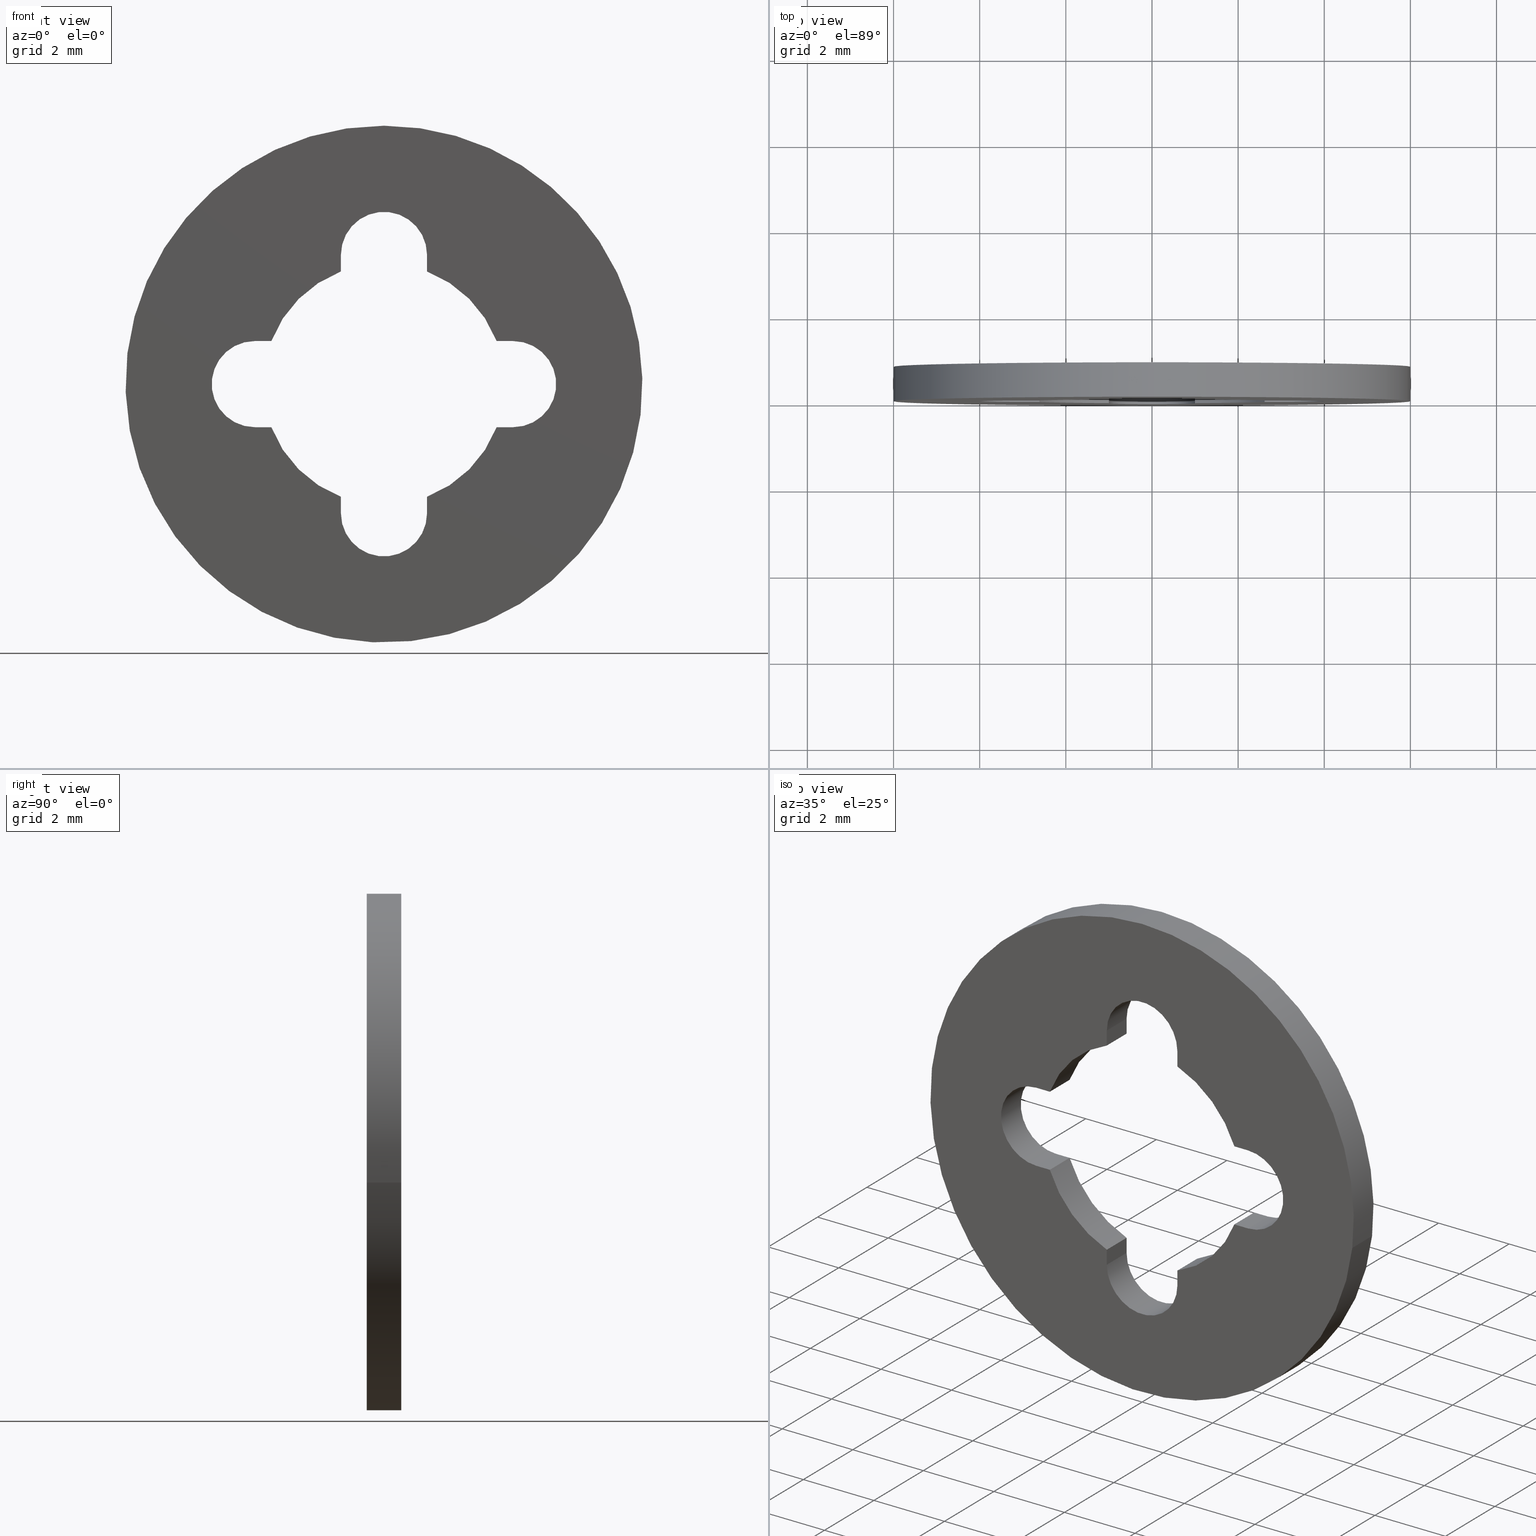
[diagram: canonical four-view strip — front | top / right | iso, engineering-drawing reading convention]
A machine part, canonical four-view strip (front | top / right | iso — engineering-drawing reading convention). The complete STEP part file that produces these views, byte-faithful:
ISO-10303-21;
HEADER;

FILE_DESCRIPTION( (''), '2;1');
FILE_NAME ('PC007.134708.TM_147V_4BK_6366.stp','2025-07-23T13:39:48',(''),(''),'spGate 19.8.4 (****-****-****-****)','','');

FILE_SCHEMA (('AUTOMOTIVE_DESIGN'));
ENDSEC;

DATA;
#10=(GEOMETRIC_REPRESENTATION_CONTEXT(3) GLOBAL_UNCERTAINTY_ASSIGNED_CONTEXT((#11)) GLOBAL_UNIT_ASSIGNED_CONTEXT((#12,#13,#14)) REPRESENTATION_CONTEXT('ID1','3D'));
#11=UNCERTAINTY_MEASURE_WITH_UNIT(LENGTH_MEASURE(0.01),#15,'DISTANCE_ACCURACY_VALUE','Maximum model space distance between geometric entities at asserted connectivities');
#12=(NAMED_UNIT(*) SI_UNIT($,.STERADIAN.) SOLID_ANGLE_UNIT());
#13=(CONVERSION_BASED_UNIT('DEGREE',#16) NAMED_UNIT(#17) PLANE_ANGLE_UNIT());
#14=(LENGTH_UNIT() NAMED_UNIT(*) SI_UNIT(.MILLI.,.METRE.));
#15=(LENGTH_UNIT() NAMED_UNIT(*) SI_UNIT(.MILLI.,.METRE.));
#16=PLANE_ANGLE_MEASURE_WITH_UNIT(PLANE_ANGLE_MEASURE(0.01745329252),#18);
#17=DIMENSIONAL_EXPONENTS(0.0,0.0,0.0,0.0,0.0,0.0,0.0);
#18=(NAMED_UNIT(*) PLANE_ANGLE_UNIT() SI_UNIT($,.RADIAN.));
#19=MANIFOLD_SOLID_BREP('TM_147V_4BK',#31);
#20=ADVANCED_BREP_SHAPE_REPRESENTATION('',(#19),#10);
#21=APPLICATION_CONTEXT('');
#22=APPLICATION_PROTOCOL_DEFINITION('International Standard','automotive_design',1999,#21);
#23=PRODUCT_DEFINITION_CONTEXT('',#21,'design');
#24=PRODUCT_CONTEXT('',#21,'mechanical');
#25=PRODUCT('','','',(#24));
#26=PRODUCT_DEFINITION_FORMATION_WITH_SPECIFIED_SOURCE('','',#25,.NOT_KNOWN.);
#27=PRODUCT_RELATED_PRODUCT_CATEGORY('tool','tool',(#25));
#28=PRODUCT_DEFINITION('','',#26,#23);
#29=PRODUCT_DEFINITION_SHAPE('','',#28);
#30=SHAPE_DEFINITION_REPRESENTATION(#29,#20);
#31=CLOSED_SHELL('',(#40,#41,#42,#43,#44,#45,#46,#47,#48,#49,#50,#51,#52,#53,#54,#55,#56,#57,#58,#59));
#32=COLOUR_RGB('',0.00000000000E+00,0.00000000000E+00,0.00000000000E+00);
#33=FILL_AREA_STYLE_COLOUR('',#32);
#34=FILL_AREA_STYLE('',(#33));
#35=SURFACE_STYLE_FILL_AREA(#34);
#36=SURFACE_SIDE_STYLE('',(#35));
#37=SURFACE_STYLE_USAGE(.BOTH.,#36);
#38=PRESENTATION_STYLE_ASSIGNMENT((#37));
#39=STYLED_ITEM('',(#38),#19);
#40=ADVANCED_FACE('',(#61,#62),#60,.T.);
#41=ADVANCED_FACE('',(#72,#73),#71,.F.);
#42=ADVANCED_FACE('',(#83),#82,.F.);
#43=ADVANCED_FACE('',(#93),#92,.F.);
#44=ADVANCED_FACE('',(#103),#102,.F.);
#45=ADVANCED_FACE('',(#113),#112,.F.);
#46=ADVANCED_FACE('',(#123),#122,.F.);
#47=ADVANCED_FACE('',(#133),#132,.F.);
#48=ADVANCED_FACE('',(#143),#142,.F.);
#49=ADVANCED_FACE('',(#153),#152,.F.);
#50=ADVANCED_FACE('',(#163),#162,.F.);
#51=ADVANCED_FACE('',(#173),#172,.F.);
#52=ADVANCED_FACE('',(#183),#182,.F.);
#53=ADVANCED_FACE('',(#193),#192,.F.);
#54=ADVANCED_FACE('',(#203),#202,.F.);
#55=ADVANCED_FACE('',(#213),#212,.F.);
#56=ADVANCED_FACE('',(#223),#222,.F.);
#57=ADVANCED_FACE('',(#233),#232,.F.);
#58=ADVANCED_FACE('',(#243),#242,.T.);
#59=ADVANCED_FACE('',(#253),#252,.T.);
#60=PLANE('',#265);
#61=FACE_OUTER_BOUND('',#266,.T.);
#62=FACE_BOUND('',#267,.T.);
#63=COLOUR_RGB('',1.00000000000E+00,1.00000000000E+00,1.00000000000E+00);
#64=FILL_AREA_STYLE_COLOUR('',#63);
#65=FILL_AREA_STYLE('',(#64));
#66=SURFACE_STYLE_FILL_AREA(#65);
#67=SURFACE_SIDE_STYLE('',(#66));
#68=SURFACE_STYLE_USAGE(.BOTH.,#67);
#69=PRESENTATION_STYLE_ASSIGNMENT((#68));
#70=STYLED_ITEM('',(#69),#40);
#71=PLANE('',#271);
#72=FACE_OUTER_BOUND('',#272,.T.);
#73=FACE_BOUND('',#273,.T.);
#74=COLOUR_RGB('',1.00000000000E+00,1.00000000000E+00,1.00000000000E+00);
#75=FILL_AREA_STYLE_COLOUR('',#74);
#76=FILL_AREA_STYLE('',(#75));
#77=SURFACE_STYLE_FILL_AREA(#76);
#78=SURFACE_SIDE_STYLE('',(#77));
#79=SURFACE_STYLE_USAGE(.BOTH.,#78);
#80=PRESENTATION_STYLE_ASSIGNMENT((#79));
#81=STYLED_ITEM('',(#80),#41);
#82=CYLINDRICAL_SURFACE('',#277,1.00000000000E+00);
#83=FACE_OUTER_BOUND('',#278,.T.);
#84=COLOUR_RGB('',1.00000000000E+00,1.00000000000E+00,1.00000000000E+00);
#85=FILL_AREA_STYLE_COLOUR('',#84);
#86=FILL_AREA_STYLE('',(#85));
#87=SURFACE_STYLE_FILL_AREA(#86);
#88=SURFACE_SIDE_STYLE('',(#87));
#89=SURFACE_STYLE_USAGE(.BOTH.,#88);
#90=PRESENTATION_STYLE_ASSIGNMENT((#89));
#91=STYLED_ITEM('',(#90),#42);
#92=PLANE('',#282);
#93=FACE_OUTER_BOUND('',#283,.T.);
#94=COLOUR_RGB('',1.00000000000E+00,1.00000000000E+00,1.00000000000E+00);
#95=FILL_AREA_STYLE_COLOUR('',#94);
#96=FILL_AREA_STYLE('',(#95));
#97=SURFACE_STYLE_FILL_AREA(#96);
#98=SURFACE_SIDE_STYLE('',(#97));
#99=SURFACE_STYLE_USAGE(.BOTH.,#98);
#100=PRESENTATION_STYLE_ASSIGNMENT((#99));
#101=STYLED_ITEM('',(#100),#43);
#102=CYLINDRICAL_SURFACE('',#287,2.80000000000E+00);
#103=FACE_OUTER_BOUND('',#288,.T.);
#104=COLOUR_RGB('',1.00000000000E+00,1.00000000000E+00,1.00000000000E+00);
#105=FILL_AREA_STYLE_COLOUR('',#104);
#106=FILL_AREA_STYLE('',(#105));
#107=SURFACE_STYLE_FILL_AREA(#106);
#108=SURFACE_SIDE_STYLE('',(#107));
#109=SURFACE_STYLE_USAGE(.BOTH.,#108);
#110=PRESENTATION_STYLE_ASSIGNMENT((#109));
#111=STYLED_ITEM('',(#110),#44);
#112=PLANE('',#292);
#113=FACE_OUTER_BOUND('',#293,.T.);
#114=COLOUR_RGB('',1.00000000000E+00,1.00000000000E+00,1.00000000000E+00);
#115=FILL_AREA_STYLE_COLOUR('',#114);
#116=FILL_AREA_STYLE('',(#115));
#117=SURFACE_STYLE_FILL_AREA(#116);
#118=SURFACE_SIDE_STYLE('',(#117));
#119=SURFACE_STYLE_USAGE(.BOTH.,#118);
#120=PRESENTATION_STYLE_ASSIGNMENT((#119));
#121=STYLED_ITEM('',(#120),#45);
#122=CYLINDRICAL_SURFACE('',#297,1.00000000000E+00);
#123=FACE_OUTER_BOUND('',#298,.T.);
#124=COLOUR_RGB('',1.00000000000E+00,1.00000000000E+00,1.00000000000E+00);
#125=FILL_AREA_STYLE_COLOUR('',#124);
#126=FILL_AREA_STYLE('',(#125));
#127=SURFACE_STYLE_FILL_AREA(#126);
#128=SURFACE_SIDE_STYLE('',(#127));
#129=SURFACE_STYLE_USAGE(.BOTH.,#128);
#130=PRESENTATION_STYLE_ASSIGNMENT((#129));
#131=STYLED_ITEM('',(#130),#46);
#132=PLANE('',#302);
#133=FACE_OUTER_BOUND('',#303,.T.);
#134=COLOUR_RGB('',1.00000000000E+00,1.00000000000E+00,1.00000000000E+00);
#135=FILL_AREA_STYLE_COLOUR('',#134);
#136=FILL_AREA_STYLE('',(#135));
#137=SURFACE_STYLE_FILL_AREA(#136);
#138=SURFACE_SIDE_STYLE('',(#137));
#139=SURFACE_STYLE_USAGE(.BOTH.,#138);
#140=PRESENTATION_STYLE_ASSIGNMENT((#139));
#141=STYLED_ITEM('',(#140),#47);
#142=CYLINDRICAL_SURFACE('',#307,2.80000000000E+00);
#143=FACE_OUTER_BOUND('',#308,.T.);
#144=COLOUR_RGB('',1.00000000000E+00,1.00000000000E+00,1.00000000000E+00);
#145=FILL_AREA_STYLE_COLOUR('',#144);
#146=FILL_AREA_STYLE('',(#145));
#147=SURFACE_STYLE_FILL_AREA(#146);
#148=SURFACE_SIDE_STYLE('',(#147));
#149=SURFACE_STYLE_USAGE(.BOTH.,#148);
#150=PRESENTATION_STYLE_ASSIGNMENT((#149));
#151=STYLED_ITEM('',(#150),#48);
#152=PLANE('',#312);
#153=FACE_OUTER_BOUND('',#313,.T.);
#154=COLOUR_RGB('',1.00000000000E+00,1.00000000000E+00,1.00000000000E+00);
#155=FILL_AREA_STYLE_COLOUR('',#154);
#156=FILL_AREA_STYLE('',(#155));
#157=SURFACE_STYLE_FILL_AREA(#156);
#158=SURFACE_SIDE_STYLE('',(#157));
#159=SURFACE_STYLE_USAGE(.BOTH.,#158);
#160=PRESENTATION_STYLE_ASSIGNMENT((#159));
#161=STYLED_ITEM('',(#160),#49);
#162=CYLINDRICAL_SURFACE('',#317,1.00000000000E+00);
#163=FACE_OUTER_BOUND('',#318,.T.);
#164=COLOUR_RGB('',1.00000000000E+00,1.00000000000E+00,1.00000000000E+00);
#165=FILL_AREA_STYLE_COLOUR('',#164);
#166=FILL_AREA_STYLE('',(#165));
#167=SURFACE_STYLE_FILL_AREA(#166);
#168=SURFACE_SIDE_STYLE('',(#167));
#169=SURFACE_STYLE_USAGE(.BOTH.,#168);
#170=PRESENTATION_STYLE_ASSIGNMENT((#169));
#171=STYLED_ITEM('',(#170),#50);
#172=PLANE('',#322);
#173=FACE_OUTER_BOUND('',#323,.T.);
#174=COLOUR_RGB('',1.00000000000E+00,1.00000000000E+00,1.00000000000E+00);
#175=FILL_AREA_STYLE_COLOUR('',#174);
#176=FILL_AREA_STYLE('',(#175));
#177=SURFACE_STYLE_FILL_AREA(#176);
#178=SURFACE_SIDE_STYLE('',(#177));
#179=SURFACE_STYLE_USAGE(.BOTH.,#178);
#180=PRESENTATION_STYLE_ASSIGNMENT((#179));
#181=STYLED_ITEM('',(#180),#51);
#182=CYLINDRICAL_SURFACE('',#327,2.80000000000E+00);
#183=FACE_OUTER_BOUND('',#328,.T.);
#184=COLOUR_RGB('',1.00000000000E+00,1.00000000000E+00,1.00000000000E+00);
#185=FILL_AREA_STYLE_COLOUR('',#184);
#186=FILL_AREA_STYLE('',(#185));
#187=SURFACE_STYLE_FILL_AREA(#186);
#188=SURFACE_SIDE_STYLE('',(#187));
#189=SURFACE_STYLE_USAGE(.BOTH.,#188);
#190=PRESENTATION_STYLE_ASSIGNMENT((#189));
#191=STYLED_ITEM('',(#190),#52);
#192=PLANE('',#332);
#193=FACE_OUTER_BOUND('',#333,.T.);
#194=COLOUR_RGB('',1.00000000000E+00,1.00000000000E+00,1.00000000000E+00);
#195=FILL_AREA_STYLE_COLOUR('',#194);
#196=FILL_AREA_STYLE('',(#195));
#197=SURFACE_STYLE_FILL_AREA(#196);
#198=SURFACE_SIDE_STYLE('',(#197));
#199=SURFACE_STYLE_USAGE(.BOTH.,#198);
#200=PRESENTATION_STYLE_ASSIGNMENT((#199));
#201=STYLED_ITEM('',(#200),#53);
#202=CYLINDRICAL_SURFACE('',#337,1.00000000000E+00);
#203=FACE_OUTER_BOUND('',#338,.T.);
#204=COLOUR_RGB('',1.00000000000E+00,1.00000000000E+00,1.00000000000E+00);
#205=FILL_AREA_STYLE_COLOUR('',#204);
#206=FILL_AREA_STYLE('',(#205));
#207=SURFACE_STYLE_FILL_AREA(#206);
#208=SURFACE_SIDE_STYLE('',(#207));
#209=SURFACE_STYLE_USAGE(.BOTH.,#208);
#210=PRESENTATION_STYLE_ASSIGNMENT((#209));
#211=STYLED_ITEM('',(#210),#54);
#212=PLANE('',#342);
#213=FACE_OUTER_BOUND('',#343,.T.);
#214=COLOUR_RGB('',1.00000000000E+00,1.00000000000E+00,1.00000000000E+00);
#215=FILL_AREA_STYLE_COLOUR('',#214);
#216=FILL_AREA_STYLE('',(#215));
#217=SURFACE_STYLE_FILL_AREA(#216);
#218=SURFACE_SIDE_STYLE('',(#217));
#219=SURFACE_STYLE_USAGE(.BOTH.,#218);
#220=PRESENTATION_STYLE_ASSIGNMENT((#219));
#221=STYLED_ITEM('',(#220),#55);
#222=CYLINDRICAL_SURFACE('',#347,2.80000000000E+00);
#223=FACE_OUTER_BOUND('',#348,.T.);
#224=COLOUR_RGB('',1.00000000000E+00,1.00000000000E+00,1.00000000000E+00);
#225=FILL_AREA_STYLE_COLOUR('',#224);
#226=FILL_AREA_STYLE('',(#225));
#227=SURFACE_STYLE_FILL_AREA(#226);
#228=SURFACE_SIDE_STYLE('',(#227));
#229=SURFACE_STYLE_USAGE(.BOTH.,#228);
#230=PRESENTATION_STYLE_ASSIGNMENT((#229));
#231=STYLED_ITEM('',(#230),#56);
#232=PLANE('',#352);
#233=FACE_OUTER_BOUND('',#353,.T.);
#234=COLOUR_RGB('',1.00000000000E+00,1.00000000000E+00,1.00000000000E+00);
#235=FILL_AREA_STYLE_COLOUR('',#234);
#236=FILL_AREA_STYLE('',(#235));
#237=SURFACE_STYLE_FILL_AREA(#236);
#238=SURFACE_SIDE_STYLE('',(#237));
#239=SURFACE_STYLE_USAGE(.BOTH.,#238);
#240=PRESENTATION_STYLE_ASSIGNMENT((#239));
#241=STYLED_ITEM('',(#240),#57);
#242=CYLINDRICAL_SURFACE('',#357,6.00000000000E+00);
#243=FACE_OUTER_BOUND('',#358,.T.);
#244=COLOUR_RGB('',1.00000000000E+00,1.00000000000E+00,1.00000000000E+00);
#245=FILL_AREA_STYLE_COLOUR('',#244);
#246=FILL_AREA_STYLE('',(#245));
#247=SURFACE_STYLE_FILL_AREA(#246);
#248=SURFACE_SIDE_STYLE('',(#247));
#249=SURFACE_STYLE_USAGE(.BOTH.,#248);
#250=PRESENTATION_STYLE_ASSIGNMENT((#249));
#251=STYLED_ITEM('',(#250),#58);
#252=CYLINDRICAL_SURFACE('',#362,6.00000000000E+00);
#253=FACE_OUTER_BOUND('',#363,.T.);
#254=COLOUR_RGB('',1.00000000000E+00,1.00000000000E+00,1.00000000000E+00);
#255=FILL_AREA_STYLE_COLOUR('',#254);
#256=FILL_AREA_STYLE('',(#255));
#257=SURFACE_STYLE_FILL_AREA(#256);
#258=SURFACE_SIDE_STYLE('',(#257));
#259=SURFACE_STYLE_USAGE(.BOTH.,#258);
#260=PRESENTATION_STYLE_ASSIGNMENT((#259));
#261=STYLED_ITEM('',(#260),#59);
#262=CARTESIAN_POINT('',(-1.24707658145E+01,8.00000000000E-01,7.80000000000E+00));
#263=DIRECTION('',(-0.00000000000E+00,1.00000000000E+00,0.00000000000E+00));
#264=DIRECTION('',(1.00000000000E+00,0.00000000000E+00,6.72936637806E-17));
#265=AXIS2_PLACEMENT_3D('',#262,#263,#264);
#266=EDGE_LOOP('',(#364,#365,#366));
#267=EDGE_LOOP('',(#367,#368,#369,#370,#371,#372,#373,#374,#375,#376,#377,#378,#379,#380,#381,#382));
#268=CARTESIAN_POINT('',(-1.24707658145E+01,0.00000000000E+00,7.80000000000E+00));
#269=DIRECTION('',(-0.00000000000E+00,1.00000000000E+00,0.00000000000E+00));
#270=DIRECTION('',(1.00000000000E+00,0.00000000000E+00,0.00000000000E+00));
#271=AXIS2_PLACEMENT_3D('',#268,#269,#270);
#272=EDGE_LOOP('',(#383,#384,#385));
#273=EDGE_LOOP('',(#386,#387,#388,#389,#390,#391,#392,#393,#394,#395,#396,#397,#398,#399,#400,#401));
#274=CARTESIAN_POINT('',(3.00000000000E+00,-2.05000000000E-02,-7.18316976307E-17));
#275=DIRECTION('',(-4.78133526319E-16,-1.00000000000E+00,-1.25203670198E-17));
#276=DIRECTION('',(-9.99961923064E-01,4.78006061032E-16,8.72653549837E-03));
#277=AXIS2_PLACEMENT_3D('',#274,#275,#276);
#278=EDGE_LOOP('',(#402,#403,#404,#405));
#279=CARTESIAN_POINT('',(3.03846606339E+00,-8.00000000000E-02,-1.00000000000E+00));
#280=DIRECTION('',(0.00000000000E+00,0.00000000000E+00,-1.00000000000E+00));
#281=DIRECTION('',(-1.00000000000E+00,0.00000000000E+00,0.00000000000E+00));
#282=AXIS2_PLACEMENT_3D('',#279,#280,#281);
#283=EDGE_LOOP('',(#406,#407,#408,#409));
#284=CARTESIAN_POINT('',(1.15068919589E-15,-2.05000000000E-02,-4.54454560204E-16));
#285=DIRECTION('',(9.62907109129E-17,-1.00000000000E+00,-2.46647242216E-17));
#286=DIRECTION('',(-9.47712741255E-01,-9.91270557701E-17,3.19124677929E-01));
#287=AXIS2_PLACEMENT_3D('',#284,#285,#286);
#288=EDGE_LOOP('',(#410,#411,#412,#413));
#289=CARTESIAN_POINT('',(1.00000000000E+00,-8.00000000000E-02,-2.57687332019E+00));
#290=DIRECTION('',(1.00000000000E+00,0.00000000000E+00,0.00000000000E+00));
#291=DIRECTION('',(0.00000000000E+00,0.00000000000E+00,-1.00000000000E+00));
#292=AXIS2_PLACEMENT_3D('',#289,#290,#291);
#293=EDGE_LOOP('',(#414,#415,#416,#417));
#294=CARTESIAN_POINT('',(-4.52979667664E-16,-2.05000000000E-02,-3.00000000000E+00));
#295=DIRECTION('',(0.00000000000E+00,-1.00000000000E+00,-0.00000000000E+00));
#296=DIRECTION('',(8.72653549838E-03,0.00000000000E+00,9.99961923064E-01));
#297=AXIS2_PLACEMENT_3D('',#294,#295,#296);
#298=EDGE_LOOP('',(#418,#419,#420,#421));
#299=CARTESIAN_POINT('',(-1.00000000000E+00,-8.00000000000E-02,-3.03846606339E+00));
#300=DIRECTION('',(-1.00000000000E+00,0.00000000000E+00,0.00000000000E+00));
#301=DIRECTION('',(0.00000000000E+00,0.00000000000E+00,1.00000000000E+00));
#302=AXIS2_PLACEMENT_3D('',#299,#300,#301);
#303=EDGE_LOOP('',(#422,#423,#424,#425));
#304=CARTESIAN_POINT('',(2.43212530382E-15,-2.05000000000E-02,2.40202448291E-15));
#305=DIRECTION('',(-2.46647242216E-17,-1.00000000000E+00,-9.62907109129E-17));
#306=DIRECTION('',(3.19124677929E-01,-9.91270557701E-17,9.47712741255E-01));
#307=AXIS2_PLACEMENT_3D('',#304,#305,#306);
#308=EDGE_LOOP('',(#426,#427,#428,#429));
#309=CARTESIAN_POINT('',(-2.57687330274E+00,-8.00000000000E-02,-1.00000000000E+00));
#310=DIRECTION('',(0.00000000000E+00,0.00000000000E+00,-1.00000000000E+00));
#311=DIRECTION('',(-1.00000000000E+00,0.00000000000E+00,0.00000000000E+00));
#312=AXIS2_PLACEMENT_3D('',#309,#310,#311);
#313=EDGE_LOOP('',(#430,#431,#432,#433));
#314=CARTESIAN_POINT('',(-3.00000000000E+00,-2.05000000000E-02,7.18316976307E-17));
#315=DIRECTION('',(4.78133526319E-16,-1.00000000000E+00,1.25203670198E-17));
#316=DIRECTION('',(9.99961923064E-01,4.78006061032E-16,-8.72653549837E-03));
#317=AXIS2_PLACEMENT_3D('',#314,#315,#316);
#318=EDGE_LOOP('',(#434,#435,#436,#437));
#319=CARTESIAN_POINT('',(-3.03846606339E+00,-8.00000000000E-02,1.00000000000E+00));
#320=DIRECTION('',(0.00000000000E+00,0.00000000000E+00,1.00000000000E+00));
#321=DIRECTION('',(1.00000000000E+00,0.00000000000E+00,0.00000000000E+00));
#322=AXIS2_PLACEMENT_3D('',#319,#320,#321);
#323=EDGE_LOOP('',(#438,#439,#440,#441));
#324=CARTESIAN_POINT('',(2.44819545539E-16,-2.05000000000E-02,-7.09137031779E-16));
#325=DIRECTION('',(5.82556919783E-16,-1.00000000000E+00,-6.30690831479E-16));
#326=DIRECTION('',(9.47712741255E-01,7.53365623853E-16,-3.19124677929E-01));
#327=AXIS2_PLACEMENT_3D('',#324,#325,#326);
#328=EDGE_LOOP('',(#442,#443,#444,#445));
#329=CARTESIAN_POINT('',(-1.00000000000E+00,-8.00000000000E-02,2.57687330274E+00));
#330=DIRECTION('',(-1.00000000000E+00,0.00000000000E+00,0.00000000000E+00));
#331=DIRECTION('',(0.00000000000E+00,0.00000000000E+00,1.00000000000E+00));
#332=AXIS2_PLACEMENT_3D('',#329,#330,#331);
#333=EDGE_LOOP('',(#446,#447,#448,#449));
#334=CARTESIAN_POINT('',(6.67804807602E-17,-2.05000000000E-02,3.00000000000E+00));
#335=DIRECTION('',(5.00814680791E-19,-1.00000000000E+00,-1.91253410528E-17));
#336=DIRECTION('',(-8.72653549837E-03,1.91202424413E-17,-9.99961923064E-01));
#337=AXIS2_PLACEMENT_3D('',#334,#335,#336);
#338=EDGE_LOOP('',(#450,#451,#452,#453));
#339=CARTESIAN_POINT('',(1.00000000000E+00,-8.00000000000E-02,3.03846606339E+00));
#340=DIRECTION('',(1.00000000000E+00,0.00000000000E+00,0.00000000000E+00));
#341=DIRECTION('',(0.00000000000E+00,0.00000000000E+00,-1.00000000000E+00));
#342=AXIS2_PLACEMENT_3D('',#339,#340,#341);
#343=EDGE_LOOP('',(#454,#455,#456,#457));
#344=CARTESIAN_POINT('',(-2.43212530382E-15,-2.05000000000E-02,-2.40202448291E-15));
#345=DIRECTION('',(2.46647242216E-17,-1.00000000000E+00,9.62907109129E-17));
#346=DIRECTION('',(-3.19124677929E-01,-9.91270557701E-17,-9.47712741255E-01));
#347=AXIS2_PLACEMENT_3D('',#344,#345,#346);
#348=EDGE_LOOP('',(#458,#459,#460,#461));
#349=CARTESIAN_POINT('',(2.57687330274E+00,-8.00000000000E-02,1.00000000000E+00));
#350=DIRECTION('',(0.00000000000E+00,0.00000000000E+00,1.00000000000E+00));
#351=DIRECTION('',(1.00000000000E+00,0.00000000000E+00,0.00000000000E+00));
#352=AXIS2_PLACEMENT_3D('',#349,#350,#351);
#353=EDGE_LOOP('',(#462,#463,#464,#465));
#354=CARTESIAN_POINT('',(-3.50417866765E-16,8.20000000000E-01,1.32193979310E-15));
#355=DIRECTION('',(2.06303218607E-17,1.00000000000E+00,1.73560714814E-16));
#356=DIRECTION('',(9.93009526364E-01,-4.00593428433E-32,-1.18034234657E-01));
#357=AXIS2_PLACEMENT_3D('',#354,#355,#356);
#358=EDGE_LOOP('',(#466,#467,#468,#469));
#359=CARTESIAN_POINT('',(-3.50417866765E-16,8.20000000000E-01,1.32193979310E-15));
#360=DIRECTION('',(2.06303218607E-17,1.00000000000E+00,1.73560714814E-16));
#361=DIRECTION('',(9.93009526364E-01,-4.00593428433E-32,-1.18034234657E-01));
#362=AXIS2_PLACEMENT_3D('',#359,#360,#361);
#363=EDGE_LOOP('',(#470,#471,#472,#473,#474,#475));
#364=ORIENTED_EDGE('',*,*,#476,.F.);
#365=ORIENTED_EDGE('',*,*,#477,.F.);
#366=ORIENTED_EDGE('',*,*,#478,.F.);
#367=ORIENTED_EDGE('',*,*,#479,.T.);
#368=ORIENTED_EDGE('',*,*,#480,.T.);
#369=ORIENTED_EDGE('',*,*,#481,.T.);
#370=ORIENTED_EDGE('',*,*,#482,.T.);
#371=ORIENTED_EDGE('',*,*,#483,.T.);
#372=ORIENTED_EDGE('',*,*,#484,.T.);
#373=ORIENTED_EDGE('',*,*,#485,.T.);
#374=ORIENTED_EDGE('',*,*,#486,.T.);
#375=ORIENTED_EDGE('',*,*,#487,.T.);
#376=ORIENTED_EDGE('',*,*,#488,.T.);
#377=ORIENTED_EDGE('',*,*,#489,.T.);
#378=ORIENTED_EDGE('',*,*,#490,.T.);
#379=ORIENTED_EDGE('',*,*,#491,.T.);
#380=ORIENTED_EDGE('',*,*,#492,.T.);
#381=ORIENTED_EDGE('',*,*,#493,.T.);
#382=ORIENTED_EDGE('',*,*,#494,.T.);
#383=ORIENTED_EDGE('',*,*,#495,.T.);
#384=ORIENTED_EDGE('',*,*,#496,.T.);
#385=ORIENTED_EDGE('',*,*,#497,.T.);
#386=ORIENTED_EDGE('',*,*,#498,.F.);
#387=ORIENTED_EDGE('',*,*,#499,.F.);
#388=ORIENTED_EDGE('',*,*,#500,.F.);
#389=ORIENTED_EDGE('',*,*,#501,.F.);
#390=ORIENTED_EDGE('',*,*,#502,.F.);
#391=ORIENTED_EDGE('',*,*,#503,.F.);
#392=ORIENTED_EDGE('',*,*,#504,.F.);
#393=ORIENTED_EDGE('',*,*,#505,.F.);
#394=ORIENTED_EDGE('',*,*,#506,.F.);
#395=ORIENTED_EDGE('',*,*,#507,.F.);
#396=ORIENTED_EDGE('',*,*,#508,.F.);
#397=ORIENTED_EDGE('',*,*,#509,.F.);
#398=ORIENTED_EDGE('',*,*,#510,.F.);
#399=ORIENTED_EDGE('',*,*,#511,.F.);
#400=ORIENTED_EDGE('',*,*,#512,.F.);
#401=ORIENTED_EDGE('',*,*,#513,.F.);
#402=ORIENTED_EDGE('',*,*,#499,.T.);
#403=ORIENTED_EDGE('',*,*,#514,.F.);
#404=ORIENTED_EDGE('',*,*,#479,.F.);
#405=ORIENTED_EDGE('',*,*,#515,.T.);
#406=ORIENTED_EDGE('',*,*,#500,.T.);
#407=ORIENTED_EDGE('',*,*,#515,.F.);
#408=ORIENTED_EDGE('',*,*,#494,.F.);
#409=ORIENTED_EDGE('',*,*,#516,.T.);
#410=ORIENTED_EDGE('',*,*,#501,.T.);
#411=ORIENTED_EDGE('',*,*,#516,.F.);
#412=ORIENTED_EDGE('',*,*,#493,.F.);
#413=ORIENTED_EDGE('',*,*,#517,.T.);
#414=ORIENTED_EDGE('',*,*,#502,.T.);
#415=ORIENTED_EDGE('',*,*,#517,.F.);
#416=ORIENTED_EDGE('',*,*,#492,.F.);
#417=ORIENTED_EDGE('',*,*,#518,.T.);
#418=ORIENTED_EDGE('',*,*,#503,.T.);
#419=ORIENTED_EDGE('',*,*,#518,.F.);
#420=ORIENTED_EDGE('',*,*,#491,.F.);
#421=ORIENTED_EDGE('',*,*,#519,.T.);
#422=ORIENTED_EDGE('',*,*,#504,.T.);
#423=ORIENTED_EDGE('',*,*,#519,.F.);
#424=ORIENTED_EDGE('',*,*,#490,.F.);
#425=ORIENTED_EDGE('',*,*,#520,.T.);
#426=ORIENTED_EDGE('',*,*,#505,.T.);
#427=ORIENTED_EDGE('',*,*,#520,.F.);
#428=ORIENTED_EDGE('',*,*,#489,.F.);
#429=ORIENTED_EDGE('',*,*,#521,.T.);
#430=ORIENTED_EDGE('',*,*,#506,.T.);
#431=ORIENTED_EDGE('',*,*,#521,.F.);
#432=ORIENTED_EDGE('',*,*,#488,.F.);
#433=ORIENTED_EDGE('',*,*,#522,.T.);
#434=ORIENTED_EDGE('',*,*,#507,.T.);
#435=ORIENTED_EDGE('',*,*,#522,.F.);
#436=ORIENTED_EDGE('',*,*,#487,.F.);
#437=ORIENTED_EDGE('',*,*,#523,.T.);
#438=ORIENTED_EDGE('',*,*,#508,.T.);
#439=ORIENTED_EDGE('',*,*,#523,.F.);
#440=ORIENTED_EDGE('',*,*,#486,.F.);
#441=ORIENTED_EDGE('',*,*,#524,.T.);
#442=ORIENTED_EDGE('',*,*,#509,.T.);
#443=ORIENTED_EDGE('',*,*,#524,.F.);
#444=ORIENTED_EDGE('',*,*,#485,.F.);
#445=ORIENTED_EDGE('',*,*,#525,.T.);
#446=ORIENTED_EDGE('',*,*,#510,.T.);
#447=ORIENTED_EDGE('',*,*,#525,.F.);
#448=ORIENTED_EDGE('',*,*,#484,.F.);
#449=ORIENTED_EDGE('',*,*,#526,.T.);
#450=ORIENTED_EDGE('',*,*,#511,.T.);
#451=ORIENTED_EDGE('',*,*,#526,.F.);
#452=ORIENTED_EDGE('',*,*,#483,.F.);
#453=ORIENTED_EDGE('',*,*,#527,.T.);
#454=ORIENTED_EDGE('',*,*,#512,.T.);
#455=ORIENTED_EDGE('',*,*,#527,.F.);
#456=ORIENTED_EDGE('',*,*,#482,.F.);
#457=ORIENTED_EDGE('',*,*,#528,.T.);
#458=ORIENTED_EDGE('',*,*,#513,.T.);
#459=ORIENTED_EDGE('',*,*,#528,.F.);
#460=ORIENTED_EDGE('',*,*,#481,.F.);
#461=ORIENTED_EDGE('',*,*,#529,.T.);
#462=ORIENTED_EDGE('',*,*,#498,.T.);
#463=ORIENTED_EDGE('',*,*,#529,.F.);
#464=ORIENTED_EDGE('',*,*,#480,.F.);
#465=ORIENTED_EDGE('',*,*,#514,.T.);
#466=ORIENTED_EDGE('',*,*,#477,.T.);
#467=ORIENTED_EDGE('',*,*,#530,.F.);
#468=ORIENTED_EDGE('',*,*,#496,.F.);
#469=ORIENTED_EDGE('',*,*,#531,.T.);
#470=ORIENTED_EDGE('',*,*,#495,.F.);
#471=ORIENTED_EDGE('',*,*,#497,.F.);
#472=ORIENTED_EDGE('',*,*,#530,.T.);
#473=ORIENTED_EDGE('',*,*,#476,.T.);
#474=ORIENTED_EDGE('',*,*,#478,.T.);
#475=ORIENTED_EDGE('',*,*,#531,.F.);
#476=EDGE_CURVE('',#532,#533,#534,.T.);
#477=EDGE_CURVE('',#540,#532,#541,.T.);
#478=EDGE_CURVE('',#533,#540,#547,.T.);
#479=EDGE_CURVE('',#553,#554,#555,.T.);
#480=EDGE_CURVE('',#554,#561,#562,.T.);
#481=EDGE_CURVE('',#561,#568,#569,.T.);
#482=EDGE_CURVE('',#568,#575,#576,.T.);
#483=EDGE_CURVE('',#575,#582,#583,.T.);
#484=EDGE_CURVE('',#582,#589,#590,.T.);
#485=EDGE_CURVE('',#589,#596,#597,.T.);
#486=EDGE_CURVE('',#596,#603,#604,.T.);
#487=EDGE_CURVE('',#603,#610,#611,.T.);
#488=EDGE_CURVE('',#610,#617,#618,.T.);
#489=EDGE_CURVE('',#617,#624,#625,.T.);
#490=EDGE_CURVE('',#624,#631,#632,.T.);
#491=EDGE_CURVE('',#631,#638,#639,.T.);
#492=EDGE_CURVE('',#638,#645,#646,.T.);
#493=EDGE_CURVE('',#645,#652,#653,.T.);
#494=EDGE_CURVE('',#652,#553,#659,.T.);
#495=EDGE_CURVE('',#665,#666,#667,.T.);
#496=EDGE_CURVE('',#666,#673,#674,.T.);
#497=EDGE_CURVE('',#673,#665,#680,.T.);
#498=EDGE_CURVE('',#686,#687,#688,.T.);
#499=EDGE_CURVE('',#694,#686,#695,.T.);
#500=EDGE_CURVE('',#701,#694,#702,.T.);
#501=EDGE_CURVE('',#708,#701,#709,.T.);
#502=EDGE_CURVE('',#715,#708,#716,.T.);
#503=EDGE_CURVE('',#722,#715,#723,.T.);
#504=EDGE_CURVE('',#729,#722,#730,.T.);
#505=EDGE_CURVE('',#736,#729,#737,.T.);
#506=EDGE_CURVE('',#743,#736,#744,.T.);
#507=EDGE_CURVE('',#750,#743,#751,.T.);
#508=EDGE_CURVE('',#757,#750,#758,.T.);
#509=EDGE_CURVE('',#764,#757,#765,.T.);
#510=EDGE_CURVE('',#771,#764,#772,.T.);
#511=EDGE_CURVE('',#778,#771,#779,.T.);
#512=EDGE_CURVE('',#785,#778,#786,.T.);
#513=EDGE_CURVE('',#687,#785,#792,.T.);
#514=EDGE_CURVE('',#554,#686,#798,.T.);
#515=EDGE_CURVE('',#553,#694,#804,.T.);
#516=EDGE_CURVE('',#652,#701,#810,.T.);
#517=EDGE_CURVE('',#645,#708,#816,.T.);
#518=EDGE_CURVE('',#638,#715,#822,.T.);
#519=EDGE_CURVE('',#631,#722,#828,.T.);
#520=EDGE_CURVE('',#624,#729,#834,.T.);
#521=EDGE_CURVE('',#617,#736,#840,.T.);
#522=EDGE_CURVE('',#610,#743,#846,.T.);
#523=EDGE_CURVE('',#603,#750,#852,.T.);
#524=EDGE_CURVE('',#596,#757,#858,.T.);
#525=EDGE_CURVE('',#589,#764,#864,.T.);
#526=EDGE_CURVE('',#582,#771,#870,.T.);
#527=EDGE_CURVE('',#575,#778,#876,.T.);
#528=EDGE_CURVE('',#568,#785,#882,.T.);
#529=EDGE_CURVE('',#561,#687,#888,.T.);
#530=EDGE_CURVE('',#673,#532,#894,.T.);
#531=EDGE_CURVE('',#666,#540,#900,.T.);
#532=VERTEX_POINT('',#906);
#533=VERTEX_POINT('',#907);
#534=CIRCLE('',#911,6.00000000000E+00);
#535=COLOUR_RGB('',1.00000000000E+00,1.00000000000E+00,1.00000000000E+00);
#536=DRAUGHTING_PRE_DEFINED_CURVE_FONT('continuous');
#537=CURVE_STYLE( '',#536, POSITIVE_LENGTH_MEASURE(1.00000000000E-06),#535);
#538=PRESENTATION_STYLE_ASSIGNMENT((#537));
#539=STYLED_ITEM('',(#538),#476);
#540=VERTEX_POINT('',#912);
#541=CIRCLE('',#916,6.00000000000E+00);
#542=COLOUR_RGB('',1.00000000000E+00,1.00000000000E+00,1.00000000000E+00);
#543=DRAUGHTING_PRE_DEFINED_CURVE_FONT('continuous');
#544=CURVE_STYLE( '',#543, POSITIVE_LENGTH_MEASURE(1.00000000000E-06),#542);
#545=PRESENTATION_STYLE_ASSIGNMENT((#544));
#546=STYLED_ITEM('',(#545),#477);
#547=CIRCLE('',#920,6.00000000000E+00);
#548=COLOUR_RGB('',1.00000000000E+00,1.00000000000E+00,1.00000000000E+00);
#549=DRAUGHTING_PRE_DEFINED_CURVE_FONT('continuous');
#550=CURVE_STYLE( '',#549, POSITIVE_LENGTH_MEASURE(1.00000000000E-06),#548);
#551=PRESENTATION_STYLE_ASSIGNMENT((#550));
#552=STYLED_ITEM('',(#551),#478);
#553=VERTEX_POINT('',#921);
#554=VERTEX_POINT('',#922);
#555=CIRCLE('',#926,1.00000000000E+00);
#556=COLOUR_RGB('',1.00000000000E+00,1.00000000000E+00,1.00000000000E+00);
#557=DRAUGHTING_PRE_DEFINED_CURVE_FONT('continuous');
#558=CURVE_STYLE( '',#557, POSITIVE_LENGTH_MEASURE(1.00000000000E-06),#556);
#559=PRESENTATION_STYLE_ASSIGNMENT((#558));
#560=STYLED_ITEM('',(#559),#479);
#561=VERTEX_POINT('',#927);
#562=LINE('',#928,#929);
#563=COLOUR_RGB('',1.00000000000E+00,1.00000000000E+00,1.00000000000E+00);
#564=DRAUGHTING_PRE_DEFINED_CURVE_FONT('continuous');
#565=CURVE_STYLE( '',#564, POSITIVE_LENGTH_MEASURE(1.00000000000E-06),#563);
#566=PRESENTATION_STYLE_ASSIGNMENT((#565));
#567=STYLED_ITEM('',(#566),#480);
#568=VERTEX_POINT('',#931);
#569=CIRCLE('',#935,2.80000000000E+00);
#570=COLOUR_RGB('',1.00000000000E+00,1.00000000000E+00,1.00000000000E+00);
#571=DRAUGHTING_PRE_DEFINED_CURVE_FONT('continuous');
#572=CURVE_STYLE( '',#571, POSITIVE_LENGTH_MEASURE(1.00000000000E-06),#570);
#573=PRESENTATION_STYLE_ASSIGNMENT((#572));
#574=STYLED_ITEM('',(#573),#481);
#575=VERTEX_POINT('',#936);
#576=LINE('',#937,#938);
#577=COLOUR_RGB('',1.00000000000E+00,1.00000000000E+00,1.00000000000E+00);
#578=DRAUGHTING_PRE_DEFINED_CURVE_FONT('continuous');
#579=CURVE_STYLE( '',#578, POSITIVE_LENGTH_MEASURE(1.00000000000E-06),#577);
#580=PRESENTATION_STYLE_ASSIGNMENT((#579));
#581=STYLED_ITEM('',(#580),#482);
#582=VERTEX_POINT('',#940);
#583=CIRCLE('',#944,1.00000000000E+00);
#584=COLOUR_RGB('',1.00000000000E+00,1.00000000000E+00,1.00000000000E+00);
#585=DRAUGHTING_PRE_DEFINED_CURVE_FONT('continuous');
#586=CURVE_STYLE( '',#585, POSITIVE_LENGTH_MEASURE(1.00000000000E-06),#584);
#587=PRESENTATION_STYLE_ASSIGNMENT((#586));
#588=STYLED_ITEM('',(#587),#483);
#589=VERTEX_POINT('',#945);
#590=LINE('',#946,#947);
#591=COLOUR_RGB('',1.00000000000E+00,1.00000000000E+00,1.00000000000E+00);
#592=DRAUGHTING_PRE_DEFINED_CURVE_FONT('continuous');
#593=CURVE_STYLE( '',#592, POSITIVE_LENGTH_MEASURE(1.00000000000E-06),#591);
#594=PRESENTATION_STYLE_ASSIGNMENT((#593));
#595=STYLED_ITEM('',(#594),#484);
#596=VERTEX_POINT('',#949);
#597=CIRCLE('',#953,2.80000000000E+00);
#598=COLOUR_RGB('',1.00000000000E+00,1.00000000000E+00,1.00000000000E+00);
#599=DRAUGHTING_PRE_DEFINED_CURVE_FONT('continuous');
#600=CURVE_STYLE( '',#599, POSITIVE_LENGTH_MEASURE(1.00000000000E-06),#598);
#601=PRESENTATION_STYLE_ASSIGNMENT((#600));
#602=STYLED_ITEM('',(#601),#485);
#603=VERTEX_POINT('',#954);
#604=LINE('',#955,#956);
#605=COLOUR_RGB('',1.00000000000E+00,1.00000000000E+00,1.00000000000E+00);
#606=DRAUGHTING_PRE_DEFINED_CURVE_FONT('continuous');
#607=CURVE_STYLE( '',#606, POSITIVE_LENGTH_MEASURE(1.00000000000E-06),#605);
#608=PRESENTATION_STYLE_ASSIGNMENT((#607));
#609=STYLED_ITEM('',(#608),#486);
#610=VERTEX_POINT('',#958);
#611=CIRCLE('',#962,1.00000000000E+00);
#612=COLOUR_RGB('',1.00000000000E+00,1.00000000000E+00,1.00000000000E+00);
#613=DRAUGHTING_PRE_DEFINED_CURVE_FONT('continuous');
#614=CURVE_STYLE( '',#613, POSITIVE_LENGTH_MEASURE(1.00000000000E-06),#612);
#615=PRESENTATION_STYLE_ASSIGNMENT((#614));
#616=STYLED_ITEM('',(#615),#487);
#617=VERTEX_POINT('',#963);
#618=LINE('',#964,#965);
#619=COLOUR_RGB('',1.00000000000E+00,1.00000000000E+00,1.00000000000E+00);
#620=DRAUGHTING_PRE_DEFINED_CURVE_FONT('continuous');
#621=CURVE_STYLE( '',#620, POSITIVE_LENGTH_MEASURE(1.00000000000E-06),#619);
#622=PRESENTATION_STYLE_ASSIGNMENT((#621));
#623=STYLED_ITEM('',(#622),#488);
#624=VERTEX_POINT('',#967);
#625=CIRCLE('',#971,2.80000000000E+00);
#626=COLOUR_RGB('',1.00000000000E+00,1.00000000000E+00,1.00000000000E+00);
#627=DRAUGHTING_PRE_DEFINED_CURVE_FONT('continuous');
#628=CURVE_STYLE( '',#627, POSITIVE_LENGTH_MEASURE(1.00000000000E-06),#626);
#629=PRESENTATION_STYLE_ASSIGNMENT((#628));
#630=STYLED_ITEM('',(#629),#489);
#631=VERTEX_POINT('',#972);
#632=LINE('',#973,#974);
#633=COLOUR_RGB('',1.00000000000E+00,1.00000000000E+00,1.00000000000E+00);
#634=DRAUGHTING_PRE_DEFINED_CURVE_FONT('continuous');
#635=CURVE_STYLE( '',#634, POSITIVE_LENGTH_MEASURE(1.00000000000E-06),#633);
#636=PRESENTATION_STYLE_ASSIGNMENT((#635));
#637=STYLED_ITEM('',(#636),#490);
#638=VERTEX_POINT('',#976);
#639=CIRCLE('',#980,1.00000000000E+00);
#640=COLOUR_RGB('',1.00000000000E+00,1.00000000000E+00,1.00000000000E+00);
#641=DRAUGHTING_PRE_DEFINED_CURVE_FONT('continuous');
#642=CURVE_STYLE( '',#641, POSITIVE_LENGTH_MEASURE(1.00000000000E-06),#640);
#643=PRESENTATION_STYLE_ASSIGNMENT((#642));
#644=STYLED_ITEM('',(#643),#491);
#645=VERTEX_POINT('',#981);
#646=LINE('',#982,#983);
#647=COLOUR_RGB('',1.00000000000E+00,1.00000000000E+00,1.00000000000E+00);
#648=DRAUGHTING_PRE_DEFINED_CURVE_FONT('continuous');
#649=CURVE_STYLE( '',#648, POSITIVE_LENGTH_MEASURE(1.00000000000E-06),#647);
#650=PRESENTATION_STYLE_ASSIGNMENT((#649));
#651=STYLED_ITEM('',(#650),#492);
#652=VERTEX_POINT('',#985);
#653=CIRCLE('',#989,2.80000000000E+00);
#654=COLOUR_RGB('',1.00000000000E+00,1.00000000000E+00,1.00000000000E+00);
#655=DRAUGHTING_PRE_DEFINED_CURVE_FONT('continuous');
#656=CURVE_STYLE( '',#655, POSITIVE_LENGTH_MEASURE(1.00000000000E-06),#654);
#657=PRESENTATION_STYLE_ASSIGNMENT((#656));
#658=STYLED_ITEM('',(#657),#493);
#659=LINE('',#990,#991);
#660=COLOUR_RGB('',1.00000000000E+00,1.00000000000E+00,1.00000000000E+00);
#661=DRAUGHTING_PRE_DEFINED_CURVE_FONT('continuous');
#662=CURVE_STYLE( '',#661, POSITIVE_LENGTH_MEASURE(1.00000000000E-06),#660);
#663=PRESENTATION_STYLE_ASSIGNMENT((#662));
#664=STYLED_ITEM('',(#663),#494);
#665=VERTEX_POINT('',#993);
#666=VERTEX_POINT('',#994);
#667=CIRCLE('',#998,6.00000000000E+00);
#668=COLOUR_RGB('',1.00000000000E+00,1.00000000000E+00,1.00000000000E+00);
#669=DRAUGHTING_PRE_DEFINED_CURVE_FONT('continuous');
#670=CURVE_STYLE( '',#669, POSITIVE_LENGTH_MEASURE(1.00000000000E-06),#668);
#671=PRESENTATION_STYLE_ASSIGNMENT((#670));
#672=STYLED_ITEM('',(#671),#495);
#673=VERTEX_POINT('',#999);
#674=CIRCLE('',#1003,6.00000000000E+00);
#675=COLOUR_RGB('',1.00000000000E+00,1.00000000000E+00,1.00000000000E+00);
#676=DRAUGHTING_PRE_DEFINED_CURVE_FONT('continuous');
#677=CURVE_STYLE( '',#676, POSITIVE_LENGTH_MEASURE(1.00000000000E-06),#675);
#678=PRESENTATION_STYLE_ASSIGNMENT((#677));
#679=STYLED_ITEM('',(#678),#496);
#680=CIRCLE('',#1007,6.00000000000E+00);
#681=COLOUR_RGB('',1.00000000000E+00,1.00000000000E+00,1.00000000000E+00);
#682=DRAUGHTING_PRE_DEFINED_CURVE_FONT('continuous');
#683=CURVE_STYLE( '',#682, POSITIVE_LENGTH_MEASURE(1.00000000000E-06),#681);
#684=PRESENTATION_STYLE_ASSIGNMENT((#683));
#685=STYLED_ITEM('',(#684),#497);
#686=VERTEX_POINT('',#1008);
#687=VERTEX_POINT('',#1009);
#688=LINE('',#1010,#1011);
#689=COLOUR_RGB('',1.00000000000E+00,1.00000000000E+00,1.00000000000E+00);
#690=DRAUGHTING_PRE_DEFINED_CURVE_FONT('continuous');
#691=CURVE_STYLE( '',#690, POSITIVE_LENGTH_MEASURE(1.00000000000E-06),#689);
#692=PRESENTATION_STYLE_ASSIGNMENT((#691));
#693=STYLED_ITEM('',(#692),#498);
#694=VERTEX_POINT('',#1013);
#695=CIRCLE('',#1017,1.00000000000E+00);
#696=COLOUR_RGB('',1.00000000000E+00,1.00000000000E+00,1.00000000000E+00);
#697=DRAUGHTING_PRE_DEFINED_CURVE_FONT('continuous');
#698=CURVE_STYLE( '',#697, POSITIVE_LENGTH_MEASURE(1.00000000000E-06),#696);
#699=PRESENTATION_STYLE_ASSIGNMENT((#698));
#700=STYLED_ITEM('',(#699),#499);
#701=VERTEX_POINT('',#1018);
#702=LINE('',#1019,#1020);
#703=COLOUR_RGB('',1.00000000000E+00,1.00000000000E+00,1.00000000000E+00);
#704=DRAUGHTING_PRE_DEFINED_CURVE_FONT('continuous');
#705=CURVE_STYLE( '',#704, POSITIVE_LENGTH_MEASURE(1.00000000000E-06),#703);
#706=PRESENTATION_STYLE_ASSIGNMENT((#705));
#707=STYLED_ITEM('',(#706),#500);
#708=VERTEX_POINT('',#1022);
#709=CIRCLE('',#1026,2.80000000000E+00);
#710=COLOUR_RGB('',1.00000000000E+00,1.00000000000E+00,1.00000000000E+00);
#711=DRAUGHTING_PRE_DEFINED_CURVE_FONT('continuous');
#712=CURVE_STYLE( '',#711, POSITIVE_LENGTH_MEASURE(1.00000000000E-06),#710);
#713=PRESENTATION_STYLE_ASSIGNMENT((#712));
#714=STYLED_ITEM('',(#713),#501);
#715=VERTEX_POINT('',#1027);
#716=LINE('',#1028,#1029);
#717=COLOUR_RGB('',1.00000000000E+00,1.00000000000E+00,1.00000000000E+00);
#718=DRAUGHTING_PRE_DEFINED_CURVE_FONT('continuous');
#719=CURVE_STYLE( '',#718, POSITIVE_LENGTH_MEASURE(1.00000000000E-06),#717);
#720=PRESENTATION_STYLE_ASSIGNMENT((#719));
#721=STYLED_ITEM('',(#720),#502);
#722=VERTEX_POINT('',#1031);
#723=CIRCLE('',#1035,1.00000000000E+00);
#724=COLOUR_RGB('',1.00000000000E+00,1.00000000000E+00,1.00000000000E+00);
#725=DRAUGHTING_PRE_DEFINED_CURVE_FONT('continuous');
#726=CURVE_STYLE( '',#725, POSITIVE_LENGTH_MEASURE(1.00000000000E-06),#724);
#727=PRESENTATION_STYLE_ASSIGNMENT((#726));
#728=STYLED_ITEM('',(#727),#503);
#729=VERTEX_POINT('',#1036);
#730=LINE('',#1037,#1038);
#731=COLOUR_RGB('',1.00000000000E+00,1.00000000000E+00,1.00000000000E+00);
#732=DRAUGHTING_PRE_DEFINED_CURVE_FONT('continuous');
#733=CURVE_STYLE( '',#732, POSITIVE_LENGTH_MEASURE(1.00000000000E-06),#731);
#734=PRESENTATION_STYLE_ASSIGNMENT((#733));
#735=STYLED_ITEM('',(#734),#504);
#736=VERTEX_POINT('',#1040);
#737=CIRCLE('',#1044,2.80000000000E+00);
#738=COLOUR_RGB('',1.00000000000E+00,1.00000000000E+00,1.00000000000E+00);
#739=DRAUGHTING_PRE_DEFINED_CURVE_FONT('continuous');
#740=CURVE_STYLE( '',#739, POSITIVE_LENGTH_MEASURE(1.00000000000E-06),#738);
#741=PRESENTATION_STYLE_ASSIGNMENT((#740));
#742=STYLED_ITEM('',(#741),#505);
#743=VERTEX_POINT('',#1045);
#744=LINE('',#1046,#1047);
#745=COLOUR_RGB('',1.00000000000E+00,1.00000000000E+00,1.00000000000E+00);
#746=DRAUGHTING_PRE_DEFINED_CURVE_FONT('continuous');
#747=CURVE_STYLE( '',#746, POSITIVE_LENGTH_MEASURE(1.00000000000E-06),#745);
#748=PRESENTATION_STYLE_ASSIGNMENT((#747));
#749=STYLED_ITEM('',(#748),#506);
#750=VERTEX_POINT('',#1049);
#751=CIRCLE('',#1053,1.00000000000E+00);
#752=COLOUR_RGB('',1.00000000000E+00,1.00000000000E+00,1.00000000000E+00);
#753=DRAUGHTING_PRE_DEFINED_CURVE_FONT('continuous');
#754=CURVE_STYLE( '',#753, POSITIVE_LENGTH_MEASURE(1.00000000000E-06),#752);
#755=PRESENTATION_STYLE_ASSIGNMENT((#754));
#756=STYLED_ITEM('',(#755),#507);
#757=VERTEX_POINT('',#1054);
#758=LINE('',#1055,#1056);
#759=COLOUR_RGB('',1.00000000000E+00,1.00000000000E+00,1.00000000000E+00);
#760=DRAUGHTING_PRE_DEFINED_CURVE_FONT('continuous');
#761=CURVE_STYLE( '',#760, POSITIVE_LENGTH_MEASURE(1.00000000000E-06),#759);
#762=PRESENTATION_STYLE_ASSIGNMENT((#761));
#763=STYLED_ITEM('',(#762),#508);
#764=VERTEX_POINT('',#1058);
#765=CIRCLE('',#1062,2.80000000000E+00);
#766=COLOUR_RGB('',1.00000000000E+00,1.00000000000E+00,1.00000000000E+00);
#767=DRAUGHTING_PRE_DEFINED_CURVE_FONT('continuous');
#768=CURVE_STYLE( '',#767, POSITIVE_LENGTH_MEASURE(1.00000000000E-06),#766);
#769=PRESENTATION_STYLE_ASSIGNMENT((#768));
#770=STYLED_ITEM('',(#769),#509);
#771=VERTEX_POINT('',#1063);
#772=LINE('',#1064,#1065);
#773=COLOUR_RGB('',1.00000000000E+00,1.00000000000E+00,1.00000000000E+00);
#774=DRAUGHTING_PRE_DEFINED_CURVE_FONT('continuous');
#775=CURVE_STYLE( '',#774, POSITIVE_LENGTH_MEASURE(1.00000000000E-06),#773);
#776=PRESENTATION_STYLE_ASSIGNMENT((#775));
#777=STYLED_ITEM('',(#776),#510);
#778=VERTEX_POINT('',#1067);
#779=CIRCLE('',#1071,1.00000000000E+00);
#780=COLOUR_RGB('',1.00000000000E+00,1.00000000000E+00,1.00000000000E+00);
#781=DRAUGHTING_PRE_DEFINED_CURVE_FONT('continuous');
#782=CURVE_STYLE( '',#781, POSITIVE_LENGTH_MEASURE(1.00000000000E-06),#780);
#783=PRESENTATION_STYLE_ASSIGNMENT((#782));
#784=STYLED_ITEM('',(#783),#511);
#785=VERTEX_POINT('',#1072);
#786=LINE('',#1073,#1074);
#787=COLOUR_RGB('',1.00000000000E+00,1.00000000000E+00,1.00000000000E+00);
#788=DRAUGHTING_PRE_DEFINED_CURVE_FONT('continuous');
#789=CURVE_STYLE( '',#788, POSITIVE_LENGTH_MEASURE(1.00000000000E-06),#787);
#790=PRESENTATION_STYLE_ASSIGNMENT((#789));
#791=STYLED_ITEM('',(#790),#512);
#792=CIRCLE('',#1079,2.80000000000E+00);
#793=COLOUR_RGB('',1.00000000000E+00,1.00000000000E+00,1.00000000000E+00);
#794=DRAUGHTING_PRE_DEFINED_CURVE_FONT('continuous');
#795=CURVE_STYLE( '',#794, POSITIVE_LENGTH_MEASURE(1.00000000000E-06),#793);
#796=PRESENTATION_STYLE_ASSIGNMENT((#795));
#797=STYLED_ITEM('',(#796),#513);
#798=LINE('',#1080,#1081);
#799=COLOUR_RGB('',1.00000000000E+00,1.00000000000E+00,1.00000000000E+00);
#800=DRAUGHTING_PRE_DEFINED_CURVE_FONT('continuous');
#801=CURVE_STYLE( '',#800, POSITIVE_LENGTH_MEASURE(1.00000000000E-06),#799);
#802=PRESENTATION_STYLE_ASSIGNMENT((#801));
#803=STYLED_ITEM('',(#802),#514);
#804=LINE('',#1083,#1084);
#805=COLOUR_RGB('',1.00000000000E+00,1.00000000000E+00,1.00000000000E+00);
#806=DRAUGHTING_PRE_DEFINED_CURVE_FONT('continuous');
#807=CURVE_STYLE( '',#806, POSITIVE_LENGTH_MEASURE(1.00000000000E-06),#805);
#808=PRESENTATION_STYLE_ASSIGNMENT((#807));
#809=STYLED_ITEM('',(#808),#515);
#810=LINE('',#1086,#1087);
#811=COLOUR_RGB('',1.00000000000E+00,1.00000000000E+00,1.00000000000E+00);
#812=DRAUGHTING_PRE_DEFINED_CURVE_FONT('continuous');
#813=CURVE_STYLE( '',#812, POSITIVE_LENGTH_MEASURE(1.00000000000E-06),#811);
#814=PRESENTATION_STYLE_ASSIGNMENT((#813));
#815=STYLED_ITEM('',(#814),#516);
#816=LINE('',#1089,#1090);
#817=COLOUR_RGB('',1.00000000000E+00,1.00000000000E+00,1.00000000000E+00);
#818=DRAUGHTING_PRE_DEFINED_CURVE_FONT('continuous');
#819=CURVE_STYLE( '',#818, POSITIVE_LENGTH_MEASURE(1.00000000000E-06),#817);
#820=PRESENTATION_STYLE_ASSIGNMENT((#819));
#821=STYLED_ITEM('',(#820),#517);
#822=LINE('',#1092,#1093);
#823=COLOUR_RGB('',1.00000000000E+00,1.00000000000E+00,1.00000000000E+00);
#824=DRAUGHTING_PRE_DEFINED_CURVE_FONT('continuous');
#825=CURVE_STYLE( '',#824, POSITIVE_LENGTH_MEASURE(1.00000000000E-06),#823);
#826=PRESENTATION_STYLE_ASSIGNMENT((#825));
#827=STYLED_ITEM('',(#826),#518);
#828=LINE('',#1095,#1096);
#829=COLOUR_RGB('',1.00000000000E+00,1.00000000000E+00,1.00000000000E+00);
#830=DRAUGHTING_PRE_DEFINED_CURVE_FONT('continuous');
#831=CURVE_STYLE( '',#830, POSITIVE_LENGTH_MEASURE(1.00000000000E-06),#829);
#832=PRESENTATION_STYLE_ASSIGNMENT((#831));
#833=STYLED_ITEM('',(#832),#519);
#834=LINE('',#1098,#1099);
#835=COLOUR_RGB('',1.00000000000E+00,1.00000000000E+00,1.00000000000E+00);
#836=DRAUGHTING_PRE_DEFINED_CURVE_FONT('continuous');
#837=CURVE_STYLE( '',#836, POSITIVE_LENGTH_MEASURE(1.00000000000E-06),#835);
#838=PRESENTATION_STYLE_ASSIGNMENT((#837));
#839=STYLED_ITEM('',(#838),#520);
#840=LINE('',#1101,#1102);
#841=COLOUR_RGB('',1.00000000000E+00,1.00000000000E+00,1.00000000000E+00);
#842=DRAUGHTING_PRE_DEFINED_CURVE_FONT('continuous');
#843=CURVE_STYLE( '',#842, POSITIVE_LENGTH_MEASURE(1.00000000000E-06),#841);
#844=PRESENTATION_STYLE_ASSIGNMENT((#843));
#845=STYLED_ITEM('',(#844),#521);
#846=LINE('',#1104,#1105);
#847=COLOUR_RGB('',1.00000000000E+00,1.00000000000E+00,1.00000000000E+00);
#848=DRAUGHTING_PRE_DEFINED_CURVE_FONT('continuous');
#849=CURVE_STYLE( '',#848, POSITIVE_LENGTH_MEASURE(1.00000000000E-06),#847);
#850=PRESENTATION_STYLE_ASSIGNMENT((#849));
#851=STYLED_ITEM('',(#850),#522);
#852=LINE('',#1107,#1108);
#853=COLOUR_RGB('',1.00000000000E+00,1.00000000000E+00,1.00000000000E+00);
#854=DRAUGHTING_PRE_DEFINED_CURVE_FONT('continuous');
#855=CURVE_STYLE( '',#854, POSITIVE_LENGTH_MEASURE(1.00000000000E-06),#853);
#856=PRESENTATION_STYLE_ASSIGNMENT((#855));
#857=STYLED_ITEM('',(#856),#523);
#858=LINE('',#1110,#1111);
#859=COLOUR_RGB('',1.00000000000E+00,1.00000000000E+00,1.00000000000E+00);
#860=DRAUGHTING_PRE_DEFINED_CURVE_FONT('continuous');
#861=CURVE_STYLE( '',#860, POSITIVE_LENGTH_MEASURE(1.00000000000E-06),#859);
#862=PRESENTATION_STYLE_ASSIGNMENT((#861));
#863=STYLED_ITEM('',(#862),#524);
#864=LINE('',#1113,#1114);
#865=COLOUR_RGB('',1.00000000000E+00,1.00000000000E+00,1.00000000000E+00);
#866=DRAUGHTING_PRE_DEFINED_CURVE_FONT('continuous');
#867=CURVE_STYLE( '',#866, POSITIVE_LENGTH_MEASURE(1.00000000000E-06),#865);
#868=PRESENTATION_STYLE_ASSIGNMENT((#867));
#869=STYLED_ITEM('',(#868),#525);
#870=LINE('',#1116,#1117);
#871=COLOUR_RGB('',1.00000000000E+00,1.00000000000E+00,1.00000000000E+00);
#872=DRAUGHTING_PRE_DEFINED_CURVE_FONT('continuous');
#873=CURVE_STYLE( '',#872, POSITIVE_LENGTH_MEASURE(1.00000000000E-06),#871);
#874=PRESENTATION_STYLE_ASSIGNMENT((#873));
#875=STYLED_ITEM('',(#874),#526);
#876=LINE('',#1119,#1120);
#877=COLOUR_RGB('',1.00000000000E+00,1.00000000000E+00,1.00000000000E+00);
#878=DRAUGHTING_PRE_DEFINED_CURVE_FONT('continuous');
#879=CURVE_STYLE( '',#878, POSITIVE_LENGTH_MEASURE(1.00000000000E-06),#877);
#880=PRESENTATION_STYLE_ASSIGNMENT((#879));
#881=STYLED_ITEM('',(#880),#527);
#882=LINE('',#1122,#1123);
#883=COLOUR_RGB('',1.00000000000E+00,1.00000000000E+00,1.00000000000E+00);
#884=DRAUGHTING_PRE_DEFINED_CURVE_FONT('continuous');
#885=CURVE_STYLE( '',#884, POSITIVE_LENGTH_MEASURE(1.00000000000E-06),#883);
#886=PRESENTATION_STYLE_ASSIGNMENT((#885));
#887=STYLED_ITEM('',(#886),#528);
#888=LINE('',#1125,#1126);
#889=COLOUR_RGB('',1.00000000000E+00,1.00000000000E+00,1.00000000000E+00);
#890=DRAUGHTING_PRE_DEFINED_CURVE_FONT('continuous');
#891=CURVE_STYLE( '',#890, POSITIVE_LENGTH_MEASURE(1.00000000000E-06),#889);
#892=PRESENTATION_STYLE_ASSIGNMENT((#891));
#893=STYLED_ITEM('',(#892),#529);
#894=(BOUNDED_CURVE() B_SPLINE_CURVE(1,(#1128,#1129),.UNSPECIFIED.,.F.,.F.) B_SPLINE_CURVE_WITH_KNOTS((2,2),(8.33333730703E-02,9.16666640476E-01),.UNSPECIFIED.) CURVE() GEOMETRIC_REPRESENTATION_ITEM() RATIONAL_B_SPLINE_CURVE((1.00000000000E+00,1.00000000000E+00)) REPRESENTATION_ITEM('') );
#895=COLOUR_RGB('',1.00000000000E+00,1.00000000000E+00,1.00000000000E+00);
#896=DRAUGHTING_PRE_DEFINED_CURVE_FONT('continuous');
#897=CURVE_STYLE( '',#896, POSITIVE_LENGTH_MEASURE(1.00000000000E-06),#895);
#898=PRESENTATION_STYLE_ASSIGNMENT((#897));
#899=STYLED_ITEM('',(#898),#530);
#900=(BOUNDED_CURVE() B_SPLINE_CURVE(1,(#1130,#1131),.UNSPECIFIED.,.F.,.F.) B_SPLINE_CURVE_WITH_KNOTS((2,2),(8.33333333349E-02,9.16666666667E-01),.UNSPECIFIED.) CURVE() GEOMETRIC_REPRESENTATION_ITEM() RATIONAL_B_SPLINE_CURVE((7.50000000000E-01,7.50000000000E-01)) REPRESENTATION_ITEM('') );
#901=COLOUR_RGB('',1.00000000000E+00,1.00000000000E+00,1.00000000000E+00);
#902=DRAUGHTING_PRE_DEFINED_CURVE_FONT('continuous');
#903=CURVE_STYLE( '',#902, POSITIVE_LENGTH_MEASURE(1.00000000000E-06),#901);
#904=PRESENTATION_STYLE_ASSIGNMENT((#903));
#905=STYLED_ITEM('',(#904),#531);
#906=CARTESIAN_POINT('',(5.95805716504E+00,8.00000000000E-01,-7.08205350218E-01));
#907=CARTESIAN_POINT('',(-3.23074900166E-14,8.00000000000E-01,6.00000000000E+00));
#908=CARTESIAN_POINT('',(-8.09130540347E-13,8.00000000000E-01,-1.77813319624E-12));
#909=DIRECTION('',(6.53194715796E-17,-1.00000000000E+00,2.35995732097E-16));
#910=DIRECTION('',(1.29118937764E-13,2.35995732097E-16,1.00000000000E+00));
#911=AXIS2_PLACEMENT_3D('',#908,#909,#910);
#912=CARTESIAN_POINT('',(-5.95793466626E+00,8.00000000000E-01,7.09235160270E-01));
#913=CARTESIAN_POINT('',(-8.09130540347E-13,8.00000000000E-01,-1.77813319624E-12));
#914=DIRECTION('',(6.53194715796E-17,-1.00000000000E+00,2.35995732097E-16));
#915=DIRECTION('',(1.29118937764E-13,2.35995732097E-16,1.00000000000E+00));
#916=AXIS2_PLACEMENT_3D('',#913,#914,#915);
#917=CARTESIAN_POINT('',(-8.09130540347E-13,8.00000000000E-01,-1.77813319624E-12));
#918=DIRECTION('',(6.53194715796E-17,-1.00000000000E+00,2.35995732097E-16));
#919=DIRECTION('',(1.29118937764E-13,2.35995732097E-16,1.00000000000E+00));
#920=AXIS2_PLACEMENT_3D('',#917,#918,#919);
#921=CARTESIAN_POINT('',(3.00000000000E+00,8.00000000000E-01,-1.00000000000E+00));
#922=CARTESIAN_POINT('',(3.00000000000E+00,8.00000000000E-01,1.00000000000E+00));
#923=CARTESIAN_POINT('',(3.00000000000E+00,8.00000000000E-01,0.00000000000E+00));
#924=DIRECTION('',(-3.92523114671E-17,-1.00000000000E+00,0.00000000000E+00));
#925=DIRECTION('',(-1.22460635382E-16,4.80686300248E-33,-1.00000000000E+00));
#926=AXIS2_PLACEMENT_3D('',#923,#924,#925);
#927=CARTESIAN_POINT('',(2.61533936612E+00,8.00000000000E-01,1.00000000000E+00));
#928=CARTESIAN_POINT('',(3.00000000000E+00,8.00000000000E-01,1.00000000000E+00));
#929=VECTOR('',#930,3.84660633876E-01);
#930=DIRECTION('',(-1.00000000000E+00,0.00000000000E+00,0.00000000000E+00));
#931=CARTESIAN_POINT('',(1.00000000000E+00,8.00000000000E-01,2.61533936612E+00));
#932=CARTESIAN_POINT('',(8.43769498715E-15,8.00000000000E-01,7.10542735760E-15));
#933=DIRECTION('',(4.33923761186E-18,-1.00000000000E+00,-1.13485789453E-17));
#934=DIRECTION('',(-9.34049773616E-01,-7.70371977755E-34,-3.57142857143E-01));
#935=AXIS2_PLACEMENT_3D('',#932,#933,#934);
#936=CARTESIAN_POINT('',(1.00000000000E+00,8.00000000000E-01,3.00000000000E+00));
#937=CARTESIAN_POINT('',(1.00000000000E+00,8.00000000000E-01,2.61533936612E+00));
#938=VECTOR('',#939,3.84660633876E-01);
#939=DIRECTION('',(0.00000000000E+00,0.00000000000E+00,1.00000000000E+00));
#940=CARTESIAN_POINT('',(-1.00000000000E+00,8.00000000000E-01,3.00000000000E+00));
#941=CARTESIAN_POINT('',(8.99280649946E-15,8.00000000000E-01,3.00000000000E+00));
#942=DIRECTION('',(3.48630559684E-31,-1.00000000000E+00,-3.92523114671E-17));
#943=DIRECTION('',(-1.00000000000E+00,-0.00000000000E+00,-8.88178419700E-15));
#944=AXIS2_PLACEMENT_3D('',#941,#942,#943);
#945=CARTESIAN_POINT('',(-1.00000000000E+00,8.00000000000E-01,2.61533936612E+00));
#946=CARTESIAN_POINT('',(-1.00000000000E+00,8.00000000000E-01,3.00000000000E+00));
#947=VECTOR('',#948,3.84660633876E-01);
#948=DIRECTION('',(4.67570929152E-14,0.00000000000E+00,-1.00000000000E+00));
#949=CARTESIAN_POINT('',(-2.61533936612E+00,8.00000000000E-01,1.00000000000E+00));
#950=CARTESIAN_POINT('',(5.99520433298E-15,8.00000000000E-01,-3.99680288865E-15));
#951=DIRECTION('',(1.18912921781E-16,-1.00000000000E+00,-3.79036891229E-16));
#952=DIRECTION('',(3.57142857143E-01,3.96508223080E-16,-9.34049773616E-01));
#953=AXIS2_PLACEMENT_3D('',#950,#951,#952);
#954=CARTESIAN_POINT('',(-3.00000000000E+00,8.00000000000E-01,1.00000000000E+00));
#955=CARTESIAN_POINT('',(-2.61533936612E+00,8.00000000000E-01,1.00000000000E+00));
#956=VECTOR('',#957,3.84660633876E-01);
#957=DIRECTION('',(-1.00000000000E+00,0.00000000000E+00,0.00000000000E+00));
#958=CARTESIAN_POINT('',(-3.00000000000E+00,8.00000000000E-01,-1.00000000000E+00));
#959=CARTESIAN_POINT('',(-3.00000000000E+00,8.00000000000E-01,0.00000000000E+00));
#960=DIRECTION('',(3.92523114671E-17,-1.00000000000E+00,0.00000000000E+00));
#961=DIRECTION('',(1.22460635382E-16,4.80686300248E-33,1.00000000000E+00));
#962=AXIS2_PLACEMENT_3D('',#959,#960,#961);
#963=CARTESIAN_POINT('',(-2.61533936612E+00,8.00000000000E-01,-1.00000000000E+00));
#964=CARTESIAN_POINT('',(-3.00000000000E+00,8.00000000000E-01,-1.00000000000E+00));
#965=VECTOR('',#966,3.84660633876E-01);
#966=DIRECTION('',(1.00000000000E+00,0.00000000000E+00,0.00000000000E+00));
#967=CARTESIAN_POINT('',(-1.00000000000E+00,8.00000000000E-01,-2.61533936612E+00));
#968=CARTESIAN_POINT('',(8.21565038223E-15,8.00000000000E-01,8.43769498715E-15));
#969=DIRECTION('',(3.79036891229E-16,-1.00000000000E+00,1.18912921781E-16));
#970=DIRECTION('',(9.34049773616E-01,3.96508223080E-16,3.57142857143E-01));
#971=AXIS2_PLACEMENT_3D('',#968,#969,#970);
#972=CARTESIAN_POINT('',(-1.00000000000E+00,8.00000000000E-01,-3.00000000000E+00));
#973=CARTESIAN_POINT('',(-1.00000000000E+00,8.00000000000E-01,-2.61533936612E+00));
#974=VECTOR('',#975,3.84660633876E-01);
#975=DIRECTION('',(0.00000000000E+00,0.00000000000E+00,-1.00000000000E+00));
#976=CARTESIAN_POINT('',(1.00000000000E+00,8.00000000000E-01,-2.99999982547E+00));
#977=CARTESIAN_POINT('',(9.11423602685E-15,8.00000000000E-01,-3.00000000000E+00));
#978=DIRECTION('',(3.28692027281E-31,-1.00000000000E+00,3.70074322896E-17));
#979=DIRECTION('',(-1.00000000000E+00,4.53195367205E-33,9.00424483238E-15));
#980=AXIS2_PLACEMENT_3D('',#977,#978,#979);
#981=CARTESIAN_POINT('',(1.00000000000E+00,8.00000000000E-01,-2.61533936612E+00));
#982=CARTESIAN_POINT('',(1.00000000000E+00,8.00000000000E-01,-2.99999982547E+00));
#983=VECTOR('',#984,3.84660459343E-01);
#984=DIRECTION('',(8.57213759057E-14,0.00000000000E+00,1.00000000000E+00));
#985=CARTESIAN_POINT('',(2.61533936612E+00,8.00000000000E-01,-1.00000000000E+00));
#986=CARTESIAN_POINT('',(3.99680288865E-15,8.00000000000E-01,-4.21884749358E-15));
#987=DIRECTION('',(-1.13485789453E-17,-1.00000000000E+00,-4.33923761186E-18));
#988=DIRECTION('',(-3.57142857143E-01,-0.00000000000E+00,9.34049773616E-01));
#989=AXIS2_PLACEMENT_3D('',#986,#987,#988);
#990=CARTESIAN_POINT('',(2.61533936612E+00,8.00000000000E-01,-1.00000000000E+00));
#991=VECTOR('',#992,3.84660633876E-01);
#992=DIRECTION('',(1.00000000000E+00,0.00000000000E+00,0.00000000000E+00));
#993=CARTESIAN_POINT('',(1.60982338571E-14,8.00121012256E-13,6.00000000000E+00));
#994=CARTESIAN_POINT('',(-5.95793466626E+00,4.40724156108E-14,7.09235160270E-01));
#995=CARTESIAN_POINT('',(-8.28226376370E-13,6.59062363496E-14,-1.82343029564E-12));
#996=DIRECTION('',(1.82315375826E-14,-1.00000000000E+00,1.22369129318E-13));
#997=DIRECTION('',(1.40359945888E-13,1.22369129318E-13,1.00000000000E+00));
#998=AXIS2_PLACEMENT_3D('',#995,#996,#997);
#999=CARTESIAN_POINT('',(5.95805716504E+00,8.78683073894E-14,-7.08205350218E-01));
#1000=CARTESIAN_POINT('',(-8.28226376370E-13,6.59062363496E-14,-1.82343029564E-12));
#1001=DIRECTION('',(1.82315375826E-14,-1.00000000000E+00,1.22369129318E-13));
#1002=DIRECTION('',(1.40359945888E-13,1.22369129318E-13,1.00000000000E+00));
#1003=AXIS2_PLACEMENT_3D('',#1000,#1001,#1002);
#1004=CARTESIAN_POINT('',(-8.28226376370E-13,6.59062363496E-14,-1.82343029564E-12));
#1005=DIRECTION('',(1.82315375826E-14,-1.00000000000E+00,1.22369129318E-13));
#1006=DIRECTION('',(1.40359945888E-13,1.22369129318E-13,1.00000000000E+00));
#1007=AXIS2_PLACEMENT_3D('',#1004,#1005,#1006);
#1008=CARTESIAN_POINT('',(3.00000000000E+00,0.00000000000E+00,1.00000000000E+00));
#1009=CARTESIAN_POINT('',(2.61533936612E+00,0.00000000000E+00,1.00000000000E+00));
#1010=CARTESIAN_POINT('',(3.00000000000E+00,0.00000000000E+00,1.00000000000E+00));
#1011=VECTOR('',#1012,3.84660633876E-01);
#1012=DIRECTION('',(-1.00000000000E+00,0.00000000000E+00,0.00000000000E+00));
#1013=CARTESIAN_POINT('',(3.00000000000E+00,0.00000000000E+00,-1.00000000000E+00));
#1014=CARTESIAN_POINT('',(3.00000000000E+00,0.00000000000E+00,0.00000000000E+00));
#1015=DIRECTION('',(0.00000000000E+00,-1.00000000000E+00,-0.00000000000E+00));
#1016=DIRECTION('',(-1.22460635382E-16,0.00000000000E+00,-1.00000000000E+00));
#1017=AXIS2_PLACEMENT_3D('',#1014,#1015,#1016);
#1018=CARTESIAN_POINT('',(2.61533936612E+00,0.00000000000E+00,-1.00000000000E+00));
#1019=CARTESIAN_POINT('',(2.61533936612E+00,0.00000000000E+00,-1.00000000000E+00));
#1020=VECTOR('',#1021,3.84660633876E-01);
#1021=DIRECTION('',(1.00000000000E+00,0.00000000000E+00,0.00000000000E+00));
#1022=CARTESIAN_POINT('',(1.00000000000E+00,0.00000000000E+00,-2.61533936612E+00));
#1023=CARTESIAN_POINT('',(3.99680288865E-15,0.00000000000E+00,-4.21884749358E-15));
#1024=DIRECTION('',(0.00000000000E+00,-1.00000000000E+00,0.00000000000E+00));
#1025=DIRECTION('',(-3.57142857143E-01,-0.00000000000E+00,9.34049773616E-01));
#1026=AXIS2_PLACEMENT_3D('',#1023,#1024,#1025);
#1027=CARTESIAN_POINT('',(1.00000000000E+00,0.00000000000E+00,-2.99999982547E+00));
#1028=CARTESIAN_POINT('',(1.00000000000E+00,0.00000000000E+00,-2.99999982547E+00));
#1029=VECTOR('',#1030,3.84660459343E-01);
#1030=DIRECTION('',(8.57213759057E-14,0.00000000000E+00,1.00000000000E+00));
#1031=CARTESIAN_POINT('',(-1.00000000000E+00,0.00000000000E+00,-3.00000000000E+00));
#1032=CARTESIAN_POINT('',(9.11423602685E-15,0.00000000000E+00,-3.00000000000E+00));
#1033=DIRECTION('',(0.00000000000E+00,-1.00000000000E+00,0.00000000000E+00));
#1034=DIRECTION('',(-1.00000000000E+00,0.00000000000E+00,9.00424483238E-15));
#1035=AXIS2_PLACEMENT_3D('',#1032,#1033,#1034);
#1036=CARTESIAN_POINT('',(-1.00000000000E+00,0.00000000000E+00,-2.61533936612E+00));
#1037=CARTESIAN_POINT('',(-1.00000000000E+00,0.00000000000E+00,-2.61533936612E+00));
#1038=VECTOR('',#1039,3.84660633876E-01);
#1039=DIRECTION('',(0.00000000000E+00,0.00000000000E+00,-1.00000000000E+00));
#1040=CARTESIAN_POINT('',(-2.61533936612E+00,0.00000000000E+00,-1.00000000000E+00));
#1041=CARTESIAN_POINT('',(8.21565038223E-15,0.00000000000E+00,8.43769498715E-15));
#1042=DIRECTION('',(0.00000000000E+00,-1.00000000000E+00,-0.00000000000E+00));
#1043=DIRECTION('',(9.34049773616E-01,-0.00000000000E+00,3.57142857143E-01));
#1044=AXIS2_PLACEMENT_3D('',#1041,#1042,#1043);
#1045=CARTESIAN_POINT('',(-3.00000000000E+00,0.00000000000E+00,-1.00000000000E+00));
#1046=CARTESIAN_POINT('',(-3.00000000000E+00,0.00000000000E+00,-1.00000000000E+00));
#1047=VECTOR('',#1048,3.84660633876E-01);
#1048=DIRECTION('',(1.00000000000E+00,0.00000000000E+00,0.00000000000E+00));
#1049=CARTESIAN_POINT('',(-3.00000000000E+00,0.00000000000E+00,1.00000000000E+00));
#1050=CARTESIAN_POINT('',(-3.00000000000E+00,0.00000000000E+00,0.00000000000E+00));
#1051=DIRECTION('',(0.00000000000E+00,-1.00000000000E+00,0.00000000000E+00));
#1052=DIRECTION('',(1.22460635382E-16,0.00000000000E+00,1.00000000000E+00));
#1053=AXIS2_PLACEMENT_3D('',#1050,#1051,#1052);
#1054=CARTESIAN_POINT('',(-2.61533936612E+00,0.00000000000E+00,1.00000000000E+00));
#1055=CARTESIAN_POINT('',(-2.61533936612E+00,0.00000000000E+00,1.00000000000E+00));
#1056=VECTOR('',#1057,3.84660633876E-01);
#1057=DIRECTION('',(-1.00000000000E+00,0.00000000000E+00,0.00000000000E+00));
#1058=CARTESIAN_POINT('',(-1.00000000000E+00,0.00000000000E+00,2.61533936612E+00));
#1059=CARTESIAN_POINT('',(5.99520433298E-15,0.00000000000E+00,-3.99680288865E-15));
#1060=DIRECTION('',(0.00000000000E+00,-1.00000000000E+00,0.00000000000E+00));
#1061=DIRECTION('',(3.57142857143E-01,-0.00000000000E+00,-9.34049773616E-01));
#1062=AXIS2_PLACEMENT_3D('',#1059,#1060,#1061);
#1063=CARTESIAN_POINT('',(-1.00000000000E+00,0.00000000000E+00,3.00000000000E+00));
#1064=CARTESIAN_POINT('',(-1.00000000000E+00,0.00000000000E+00,3.00000000000E+00));
#1065=VECTOR('',#1066,3.84660633876E-01);
#1066=DIRECTION('',(4.67570929152E-14,0.00000000000E+00,-1.00000000000E+00));
#1067=CARTESIAN_POINT('',(1.00000000000E+00,0.00000000000E+00,3.00000000000E+00));
#1068=CARTESIAN_POINT('',(8.99280649946E-15,0.00000000000E+00,3.00000000000E+00));
#1069=DIRECTION('',(0.00000000000E+00,-1.00000000000E+00,0.00000000000E+00));
#1070=DIRECTION('',(-1.00000000000E+00,-0.00000000000E+00,-8.88178419700E-15));
#1071=AXIS2_PLACEMENT_3D('',#1068,#1069,#1070);
#1072=CARTESIAN_POINT('',(1.00000000000E+00,0.00000000000E+00,2.61533936612E+00));
#1073=CARTESIAN_POINT('',(1.00000000000E+00,0.00000000000E+00,2.61533936612E+00));
#1074=VECTOR('',#1075,3.84660633876E-01);
#1075=DIRECTION('',(0.00000000000E+00,0.00000000000E+00,1.00000000000E+00));
#1076=CARTESIAN_POINT('',(8.43769498715E-15,0.00000000000E+00,7.10542735760E-15));
#1077=DIRECTION('',(0.00000000000E+00,-1.00000000000E+00,0.00000000000E+00));
#1078=DIRECTION('',(-9.34049773616E-01,-0.00000000000E+00,-3.57142857143E-01));
#1079=AXIS2_PLACEMENT_3D('',#1076,#1077,#1078);
#1080=CARTESIAN_POINT('',(3.00000000000E+00,8.00000000000E-01,1.00000000000E+00));
#1081=VECTOR('',#1082,8.00000000000E-01);
#1082=DIRECTION('',(0.00000000000E+00,-1.00000000000E+00,0.00000000000E+00));
#1083=CARTESIAN_POINT('',(3.00000000000E+00,8.00000000000E-01,-1.00000000000E+00));
#1084=VECTOR('',#1085,8.00000000000E-01);
#1085=DIRECTION('',(0.00000000000E+00,-1.00000000000E+00,0.00000000000E+00));
#1086=CARTESIAN_POINT('',(2.61533936612E+00,8.00000000000E-01,-1.00000000000E+00));
#1087=VECTOR('',#1088,8.00000000000E-01);
#1088=DIRECTION('',(0.00000000000E+00,-1.00000000000E+00,0.00000000000E+00));
#1089=CARTESIAN_POINT('',(1.00000000000E+00,8.00000000000E-01,-2.61533936612E+00));
#1090=VECTOR('',#1091,8.00000000000E-01);
#1091=DIRECTION('',(0.00000000000E+00,-1.00000000000E+00,0.00000000000E+00));
#1092=CARTESIAN_POINT('',(1.00000000000E+00,8.00000000000E-01,-2.99999982547E+00));
#1093=VECTOR('',#1094,8.00000000000E-01);
#1094=DIRECTION('',(0.00000000000E+00,-1.00000000000E+00,0.00000000000E+00));
#1095=CARTESIAN_POINT('',(-1.00000000000E+00,8.00000000000E-01,-3.00000000000E+00));
#1096=VECTOR('',#1097,8.00000000000E-01);
#1097=DIRECTION('',(0.00000000000E+00,-1.00000000000E+00,0.00000000000E+00));
#1098=CARTESIAN_POINT('',(-1.00000000000E+00,8.00000000000E-01,-2.61533936612E+00));
#1099=VECTOR('',#1100,8.00000000000E-01);
#1100=DIRECTION('',(0.00000000000E+00,-1.00000000000E+00,0.00000000000E+00));
#1101=CARTESIAN_POINT('',(-2.61533936612E+00,8.00000000000E-01,-1.00000000000E+00));
#1102=VECTOR('',#1103,8.00000000000E-01);
#1103=DIRECTION('',(0.00000000000E+00,-1.00000000000E+00,0.00000000000E+00));
#1104=CARTESIAN_POINT('',(-3.00000000000E+00,8.00000000000E-01,-1.00000000000E+00));
#1105=VECTOR('',#1106,8.00000000000E-01);
#1106=DIRECTION('',(0.00000000000E+00,-1.00000000000E+00,0.00000000000E+00));
#1107=CARTESIAN_POINT('',(-3.00000000000E+00,8.00000000000E-01,1.00000000000E+00));
#1108=VECTOR('',#1109,8.00000000000E-01);
#1109=DIRECTION('',(0.00000000000E+00,-1.00000000000E+00,0.00000000000E+00));
#1110=CARTESIAN_POINT('',(-2.61533936612E+00,8.00000000000E-01,1.00000000000E+00));
#1111=VECTOR('',#1112,8.00000000000E-01);
#1112=DIRECTION('',(0.00000000000E+00,-1.00000000000E+00,0.00000000000E+00));
#1113=CARTESIAN_POINT('',(-1.00000000000E+00,8.00000000000E-01,2.61533936612E+00));
#1114=VECTOR('',#1115,8.00000000000E-01);
#1115=DIRECTION('',(0.00000000000E+00,-1.00000000000E+00,0.00000000000E+00));
#1116=CARTESIAN_POINT('',(-1.00000000000E+00,8.00000000000E-01,3.00000000000E+00));
#1117=VECTOR('',#1118,8.00000000000E-01);
#1118=DIRECTION('',(0.00000000000E+00,-1.00000000000E+00,0.00000000000E+00));
#1119=CARTESIAN_POINT('',(1.00000000000E+00,8.00000000000E-01,3.00000000000E+00));
#1120=VECTOR('',#1121,8.00000000000E-01);
#1121=DIRECTION('',(0.00000000000E+00,-1.00000000000E+00,0.00000000000E+00));
#1122=CARTESIAN_POINT('',(1.00000000000E+00,8.00000000000E-01,2.61533936612E+00));
#1123=VECTOR('',#1124,8.00000000000E-01);
#1124=DIRECTION('',(0.00000000000E+00,-1.00000000000E+00,0.00000000000E+00));
#1125=CARTESIAN_POINT('',(2.61533936612E+00,8.00000000000E-01,1.00000000000E+00));
#1126=VECTOR('',#1127,8.00000000000E-01);
#1127=DIRECTION('',(0.00000000000E+00,-1.00000000000E+00,0.00000000000E+00));
#1128=CARTESIAN_POINT('',(5.95805715818E+00,3.81460480425E-08,-7.08205407941E-01));
#1129=CARTESIAN_POINT('',(5.95805715818E+00,7.99999974857E-01,-7.08205407941E-01));
#1130=CARTESIAN_POINT('',(-5.95805715818E+00,5.90823686271E-14,7.08205407941E-01));
#1131=CARTESIAN_POINT('',(-5.95805715818E+00,8.00000000000E-01,7.08205407941E-01));
#1132=MECHANICAL_DESIGN_GEOMETRIC_PRESENTATION_REPRESENTATION( '', (#39,#70,#81,#91,#101,#111,#121,#131,#141,#151,#161,#171,#181,#191,#201,#211,#221,#231,#241,#251,#261,#539,#546,#552,#560,#567,#574,#581,#588,#595,#602,#609,#616,#623,#630,#637,#644,#651,#658,#664,#672,#679,#685,#693,#700,#707,#714,#721,#728,#735,#742,#749,#756,#763,#770,#777,#784,#791,#797,#803,#809,#815,#821,#827,#833,#839,#845,#851,#857,#863,#869,#875,#881,#887,#893,#899,#905),#10);
ENDSEC;
END-ISO-10303-21;
